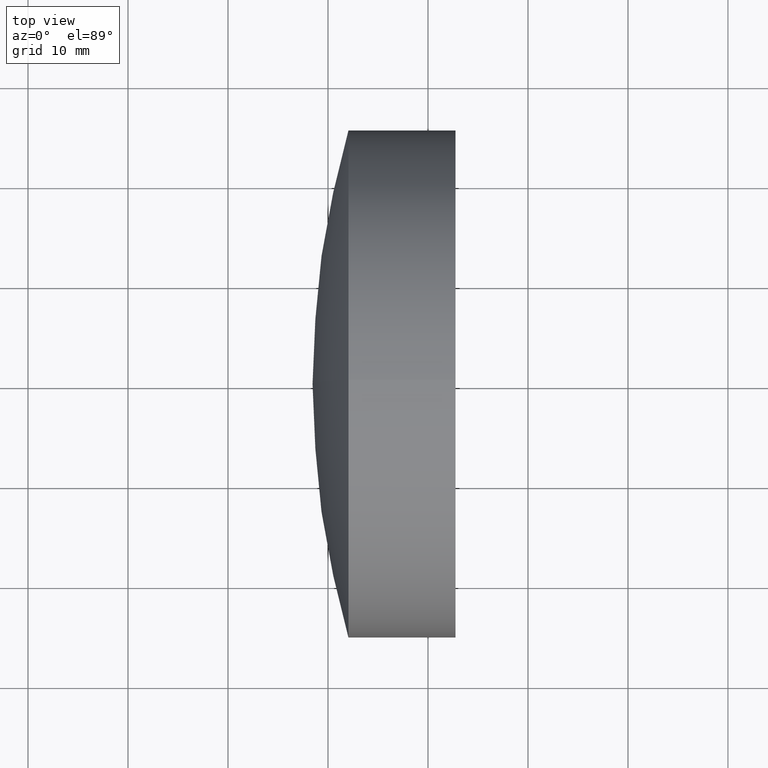
[diagram: clean part render]
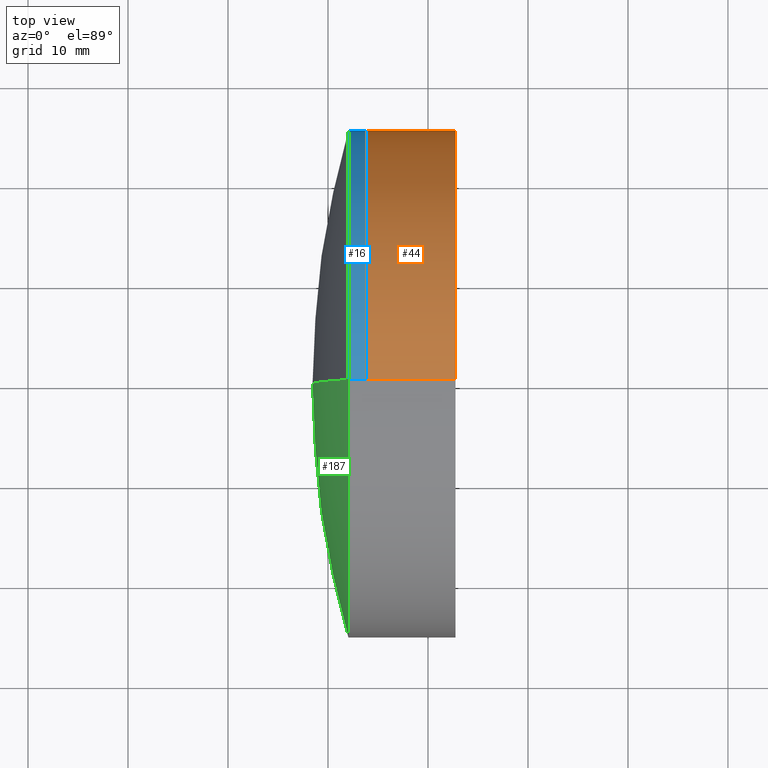
[diagram: same view with three faces highlighted in distinct colors, each labeled with its STEP entity id]
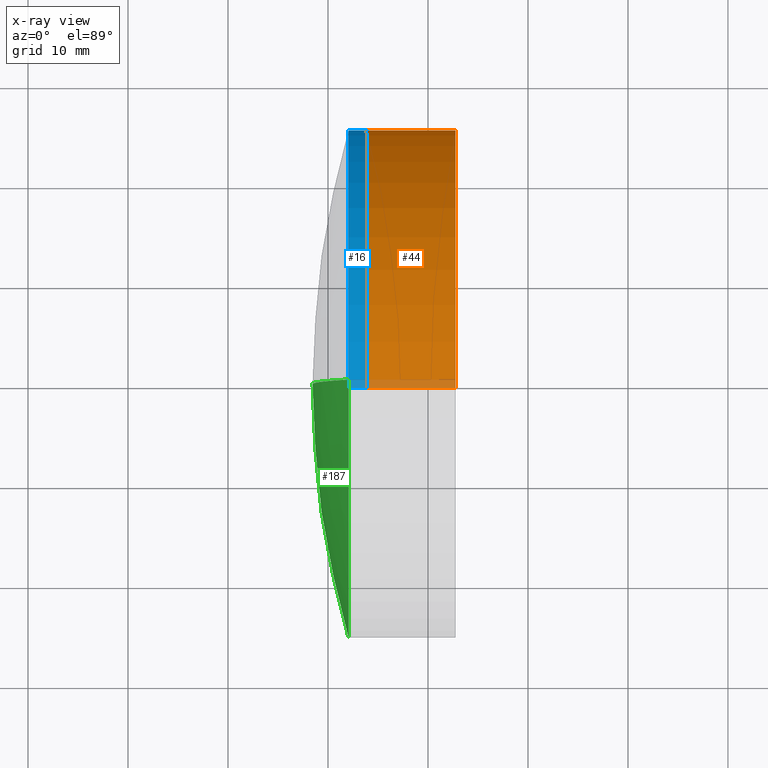
[diagram: x-ray of the same camera — body ghosted, the three highlighted faces saturated]
A machine part, top view with three faces highlighted in distinct colors.
The next image is the same camera in x-ray (body ghosted, the three faces saturated) — at least one of them is partly hidden behind the body in this view.
Their STEP definitions:

[orange] entity #44 — the highlighted cylindrical surface (partial cylindrical patch) has radius 25.4 mm, axis along (-1, -0, -0).
#4 = CARTESIAN_POINT ( 'NONE',  ( 183.8303689728458900, 0.0000000000000000000, 0.0000000000000000000 ) ) ;
#6 = AXIS2_PLACEMENT_3D ( 'NONE', #51, #226, #23 ) ;
#23 = DIRECTION ( 'NONE',  ( 0.0000000000000000000, 0.0000000000000000000, 1.000000000000000000 ) ) ;
#25 = CARTESIAN_POINT ( 'NONE',  ( -0.5519199926577972300, 0.0000000000000000000, 25.39999999999999900 ) ) ;
#41 = CARTESIAN_POINT ( 'NONE',  ( -0.5519199926577972300, 0.0000000000000000000, 0.0000000000000000000 ) ) ;
#44 = ADVANCED_FACE ( 'NONE', ( #263 ), #91, .T. ) ;
#50 = VERTEX_POINT ( 'NONE', #336 ) ;
#51 = CARTESIAN_POINT ( 'NONE',  ( 192.7471612009789500, 0.0000000000000000000, 0.0000000000000000000 ) ) ;
#73 = EDGE_LOOP ( 'NONE', ( #143, #171, #343, #277 ) ) ;
#82 = DIRECTION ( 'NONE',  ( -1.000000000000000000, -0.0000000000000000000, -0.0000000000000000000 ) ) ;
#91 = CYLINDRICAL_SURFACE ( 'NONE', #215, 25.39999999999999900 ) ;
#94 = VECTOR ( 'NONE', #144, 1000.000000000000000 ) ;
#98 = VERTEX_POINT ( 'NONE', #264 ) ;
#110 = CARTESIAN_POINT ( 'NONE',  ( -0.5519199926577972300, 3.110602869834276900E-015, -25.39999999999999900 ) ) ;
#113 = VERTEX_POINT ( 'NONE', #235 ) ;
#143 = ORIENTED_EDGE ( 'NONE', *, *, #316, .T. ) ;
#144 = DIRECTION ( 'NONE',  ( -1.000000000000000000, -0.0000000000000000000, -0.0000000000000000000 ) ) ;
#150 = CARTESIAN_POINT ( 'NONE',  ( 183.8303689728458900, 0.0000000000000000000, -25.40000000000000600 ) ) ;
#152 = VERTEX_POINT ( 'NONE', #150 ) ;
#170 = DIRECTION ( 'NONE',  ( -1.000000000000000000, -0.0000000000000000000, -0.0000000000000000000 ) ) ;
#171 = ORIENTED_EDGE ( 'NONE', *, *, #301, .T. ) ;
#204 = CIRCLE ( 'NONE', #260, 25.39999999999999900 ) ;
#215 = AXIS2_PLACEMENT_3D ( 'NONE', #41, #216, #241 ) ;
#216 = DIRECTION ( 'NONE',  ( -1.000000000000000000, -0.0000000000000000000, -0.0000000000000000000 ) ) ;
#226 = DIRECTION ( 'NONE',  ( -1.000000000000000000, -0.0000000000000000000, -0.0000000000000000000 ) ) ;
#235 = CARTESIAN_POINT ( 'NONE',  ( 192.7471612009789500, 0.0000000000000000000, -25.39999999999998400 ) ) ;
#237 = EDGE_CURVE ( 'NONE', #50, #152, #204, .T. ) ;
#239 = LINE ( 'NONE', #110, #94 ) ;
#241 = DIRECTION ( 'NONE',  ( 0.0000000000000000000, 0.0000000000000000000, 1.000000000000000000 ) ) ;
#247 = LINE ( 'NONE', #25, #311 ) ;
#260 = AXIS2_PLACEMENT_3D ( 'NONE', #4, #170, #325 ) ;
#263 = FACE_OUTER_BOUND ( 'NONE', #73, .T. ) ;
#264 = CARTESIAN_POINT ( 'NONE',  ( 192.7471612009789500, -3.110602869834275700E-015, 25.39999999999998400 ) ) ;
#277 = ORIENTED_EDGE ( 'NONE', *, *, #332, .F. ) ;
#301 = EDGE_CURVE ( 'NONE', #113, #152, #239, .T. ) ;
#302 = CIRCLE ( 'NONE', #6, 25.39999999999999900 ) ;
#311 = VECTOR ( 'NONE', #82, 1000.000000000000000 ) ;
#316 = EDGE_CURVE ( 'NONE', #98, #113, #302, .T. ) ;
#325 = DIRECTION ( 'NONE',  ( 0.0000000000000000000, 0.0000000000000000000, 1.000000000000000000 ) ) ;
#332 = EDGE_CURVE ( 'NONE', #98, #50, #247, .T. ) ;
#336 = CARTESIAN_POINT ( 'NONE',  ( 183.8303689728458900, -3.110602869834278000E-015, 25.40000000000003400 ) ) ;
#343 = ORIENTED_EDGE ( 'NONE', *, *, #237, .F. ) ;

[blue] entity #16 — the highlighted cylindrical surface (partial cylindrical patch) has radius 25.4 mm, axis along (-1, -0, -0).
#9 = CARTESIAN_POINT ( 'NONE',  ( 183.8303689728458900, 0.0000000000000000000, 25.40000000000002700 ) ) ;
#16 = ADVANCED_FACE ( 'NONE', ( #33 ), #176, .T. ) ;
#19 = EDGE_LOOP ( 'NONE', ( #133, #61, #108, #40 ) ) ;
#32 = DIRECTION ( 'NONE',  ( -1.000000000000000000, -0.0000000000000000000, -0.0000000000000000000 ) ) ;
#33 = FACE_OUTER_BOUND ( 'NONE', #19, .T. ) ;
#35 = CARTESIAN_POINT ( 'NONE',  ( 183.8303689728458900, 3.110602869834280400E-015, -25.40000000000002700 ) ) ;
#40 = ORIENTED_EDGE ( 'NONE', *, *, #81, .F. ) ;
#48 = LINE ( 'NONE', #203, #58 ) ;
#52 = DIRECTION ( 'NONE',  ( -1.000000000000000000, -0.0000000000000000000, -0.0000000000000000000 ) ) ;
#54 = VECTOR ( 'NONE', #92, 1000.000000000000000 ) ;
#58 = VECTOR ( 'NONE', #146, 1000.000000000000000 ) ;
#61 = ORIENTED_EDGE ( 'NONE', *, *, #220, .T. ) ;
#81 = EDGE_CURVE ( 'NONE', #130, #249, #132, .T. ) ;
#84 = DIRECTION ( 'NONE',  ( 0.0000000000000000000, 0.0000000000000000000, 1.000000000000000000 ) ) ;
#92 = DIRECTION ( 'NONE',  ( -1.000000000000000000, -0.0000000000000000000, -0.0000000000000000000 ) ) ;
#108 = ORIENTED_EDGE ( 'NONE', *, *, #198, .F. ) ;
#114 = CARTESIAN_POINT ( 'NONE',  ( 182.0449861135718700, 0.0000000000000000000, 0.0000000000000000000 ) ) ;
#118 = VERTEX_POINT ( 'NONE', #35 ) ;
#120 = EDGE_CURVE ( 'NONE', #130, #118, #273, .T. ) ;
#130 = VERTEX_POINT ( 'NONE', #9 ) ;
#132 = LINE ( 'NONE', #287, #54 ) ;
#133 = ORIENTED_EDGE ( 'NONE', *, *, #120, .T. ) ;
#134 = AXIS2_PLACEMENT_3D ( 'NONE', #293, #52, #138 ) ;
#138 = DIRECTION ( 'NONE',  ( 0.0000000000000000000, 0.0000000000000000000, 1.000000000000000000 ) ) ;
#142 = CARTESIAN_POINT ( 'NONE',  ( 182.0449861135718400, 0.0000000000000000000, -25.39999999999998100 ) ) ;
#146 = DIRECTION ( 'NONE',  ( -1.000000000000000000, -0.0000000000000000000, -0.0000000000000000000 ) ) ;
#176 = CYLINDRICAL_SURFACE ( 'NONE', #134, 25.40000000000002700 ) ;
#198 = EDGE_CURVE ( 'NONE', #249, #286, #337, .T. ) ;
#203 = CARTESIAN_POINT ( 'NONE',  ( -0.8160621761658039000, 3.110602869834280400E-015, -25.40000000000002700 ) ) ;
#206 = AXIS2_PLACEMENT_3D ( 'NONE', #114, #283, #84 ) ;
#210 = DIRECTION ( 'NONE',  ( 0.0000000000000000000, 0.0000000000000000000, 1.000000000000000000 ) ) ;
#220 = EDGE_CURVE ( 'NONE', #118, #286, #48, .T. ) ;
#234 = CARTESIAN_POINT ( 'NONE',  ( 183.8303689728458900, 0.0000000000000000000, 0.0000000000000000000 ) ) ;
#249 = VERTEX_POINT ( 'NONE', #303 ) ;
#273 = CIRCLE ( 'NONE', #296, 25.40000000000002700 ) ;
#283 = DIRECTION ( 'NONE',  ( -1.000000000000000000, -0.0000000000000000000, -0.0000000000000000000 ) ) ;
#286 = VERTEX_POINT ( 'NONE', #142 ) ;
#287 = CARTESIAN_POINT ( 'NONE',  ( -0.8160621761658039000, 0.0000000000000000000, 25.40000000000002700 ) ) ;
#293 = CARTESIAN_POINT ( 'NONE',  ( -0.8160621761658039000, 0.0000000000000000000, 0.0000000000000000000 ) ) ;
#296 = AXIS2_PLACEMENT_3D ( 'NONE', #234, #32, #210 ) ;
#303 = CARTESIAN_POINT ( 'NONE',  ( 182.0449861135718400, -3.110602869834274900E-015, 25.40000000000000900 ) ) ;
#337 = CIRCLE ( 'NONE', #206, 25.40000000000002700 ) ;

[green] entity #187 — the highlighted spherical surface has radius 91.62 mm.
#2 = EDGE_CURVE ( 'NONE', #286, #346, #106, .T. ) ;
#22 = CIRCLE ( 'NONE', #190, 25.40000000000002700 ) ;
#39 = FACE_OUTER_BOUND ( 'NONE', #136, .T. ) ;
#55 = EDGE_CURVE ( 'NONE', #286, #249, #22, .T. ) ;
#67 = DIRECTION ( 'NONE',  ( 0.0000000000000000000, 0.0000000000000000000, 1.000000000000000000 ) ) ;
#75 = AXIS2_PLACEMENT_3D ( 'NONE', #310, #186, #244 ) ;
#83 = CIRCLE ( 'NONE', #339, 91.62000000000000500 ) ;
#96 = CARTESIAN_POINT ( 'NONE',  ( 182.0449861135718700, 0.0000000000000000000, 0.0000000000000000000 ) ) ;
#103 = ORIENTED_EDGE ( 'NONE', *, *, #288, .T. ) ;
#106 = CIRCLE ( 'NONE', #75, 91.62000000000000500 ) ;
#116 = CARTESIAN_POINT ( 'NONE',  ( 270.0737564105605800, 0.0000000000000000000, 2.915157788928457200E-014 ) ) ;
#136 = EDGE_LOOP ( 'NONE', ( #201, #103, #329 ) ) ;
#140 = DIRECTION ( 'NONE',  ( 0.0000000000000000000, 1.224646799147353200E-016, -1.000000000000000000 ) ) ;
#142 = CARTESIAN_POINT ( 'NONE',  ( 182.0449861135718400, 0.0000000000000000000, -25.39999999999998100 ) ) ;
#148 = DIRECTION ( 'NONE',  ( -0.0000000000000000000, -1.000000000000000000, -0.0000000000000000000 ) ) ;
#166 = CARTESIAN_POINT ( 'NONE',  ( 270.0737564105605800, 0.0000000000000000000, 2.915157788928457200E-014 ) ) ;
#186 = DIRECTION ( 'NONE',  ( 0.0000000000000000000, 1.000000000000000000, -0.0000000000000000000 ) ) ;
#187 = ADVANCED_FACE ( 'NONE', ( #39 ), #331, .T. ) ;
#190 = AXIS2_PLACEMENT_3D ( 'NONE', #96, #265, #67 ) ;
#196 = CARTESIAN_POINT ( 'NONE',  ( 178.4537564105605700, 0.0000000000000000000, 2.354147090239054500E-014 ) ) ;
#201 = ORIENTED_EDGE ( 'NONE', *, *, #55, .T. ) ;
#222 = AXIS2_PLACEMENT_3D ( 'NONE', #116, #148, #259 ) ;
#244 = DIRECTION ( 'NONE',  ( 0.0000000000000000000, 0.0000000000000000000, 1.000000000000000000 ) ) ;
#249 = VERTEX_POINT ( 'NONE', #303 ) ;
#259 = DIRECTION ( 'NONE',  ( 0.0000000000000000000, 0.0000000000000000000, -1.000000000000000000 ) ) ;
#265 = DIRECTION ( 'NONE',  ( -1.000000000000000000, -0.0000000000000000000, -0.0000000000000000000 ) ) ;
#286 = VERTEX_POINT ( 'NONE', #142 ) ;
#288 = EDGE_CURVE ( 'NONE', #249, #346, #83, .T. ) ;
#303 = CARTESIAN_POINT ( 'NONE',  ( 182.0449861135718400, -3.110602869834274900E-015, 25.40000000000000900 ) ) ;
#310 = CARTESIAN_POINT ( 'NONE',  ( 270.0737564105605800, 0.0000000000000000000, 2.915157788928457200E-014 ) ) ;
#321 = DIRECTION ( 'NONE',  ( 0.0000000000000000000, -1.000000000000000000, -1.224646799147353200E-016 ) ) ;
#329 = ORIENTED_EDGE ( 'NONE', *, *, #2, .F. ) ;
#331 = SPHERICAL_SURFACE ( 'NONE', #222, 91.62000000000000500 ) ;
#339 = AXIS2_PLACEMENT_3D ( 'NONE', #166, #321, #140 ) ;
#346 = VERTEX_POINT ( 'NONE', #196 ) ;